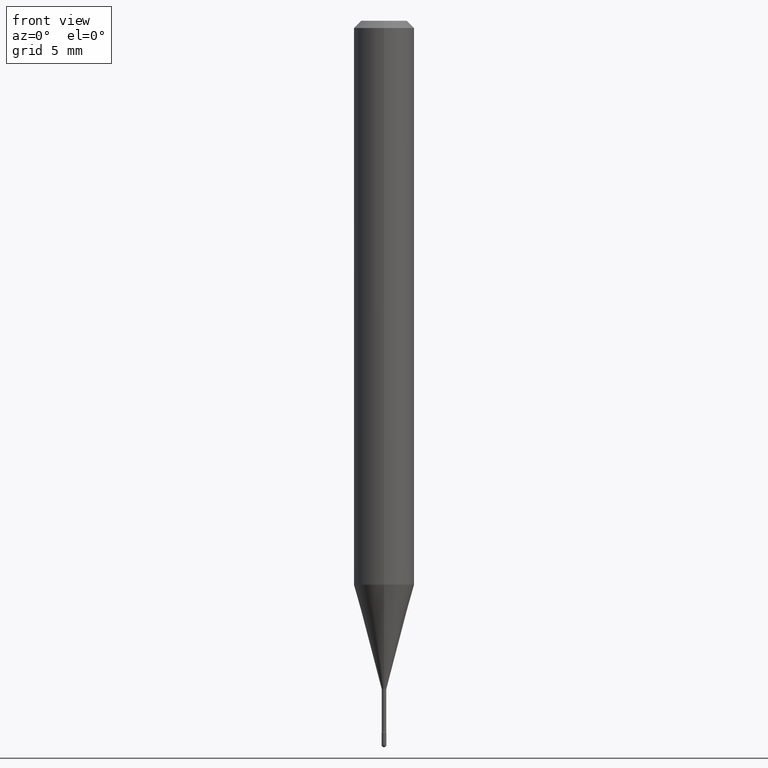
[diagram: clean part render]
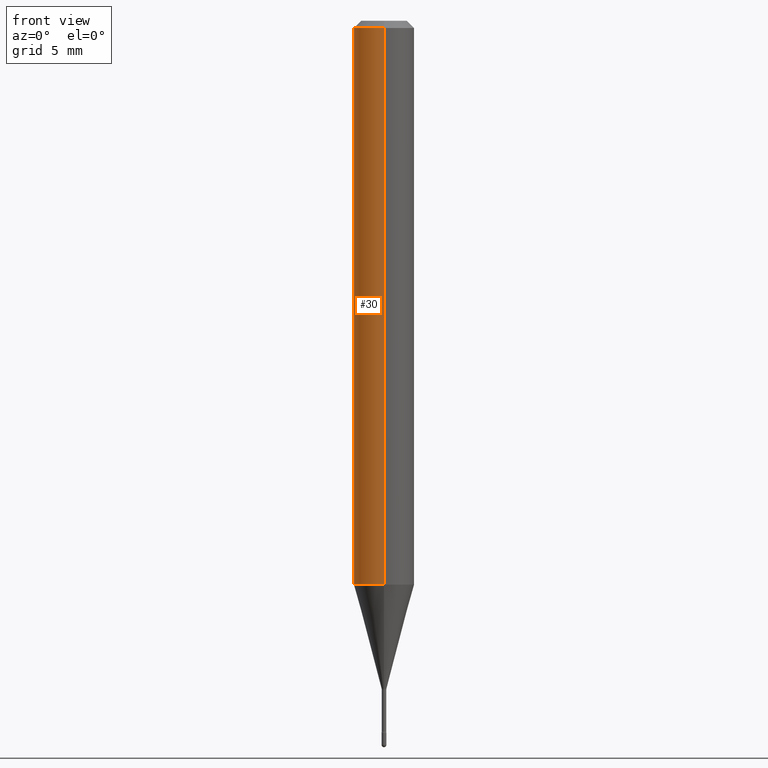
[diagram: same view with one face highlighted and labeled with its STEP entity id]
A machine part, front view. The second image highlights one B-rep face of the part: STEP entity #30.
In plain terms, the highlighted cylindrical surface (edge-blend (fillet) strip) has radius 1.5875 mm, axis along (-0, 0, 1).
Its self-contained STEP definition (entity closure, byte-faithful):
#30 = ADVANCED_FACE ( 'NONE', ( #268 ), #535, .T. ) ;
#41 = VECTOR ( 'NONE', #559, 39.37007874015748143 ) ;
#47 = CARTESIAN_POINT ( 'NONE',  ( -1.169113584055446105E-44, 1.669184350826100908E-30, 4.780733988912460139E-16 ) ) ;
#52 = CIRCLE ( 'NONE', #317, 0.06250000000000000000 ) ;
#55 = DIRECTION ( 'NONE',  ( -2.446607092307177715E-29, 3.489851248329160132E-15, 1.000000000000000000 ) ) ;
#80 = VECTOR ( 'NONE', #392, 39.37007874015748143 ) ;
#137 = VERTEX_POINT ( 'NONE', #505 ) ;
#163 = LINE ( 'NONE', #207, #41 ) ;
#178 = CARTESIAN_POINT ( 'NONE',  ( -4.364351673553631225E-16, -0.06250000000000406619, -1.164287463322519089 ) ) ;
#180 = DIRECTION ( 'NONE',  ( -6.982962677686265922E-15, -1.000000000000000000, 3.489851248329160132E-15 ) ) ;
#207 = CARTESIAN_POINT ( 'NONE',  ( -4.364351673553916201E-16, -0.06250000000000000000, 6.961891019118185468E-16 ) ) ;
#212 = EDGE_LOOP ( 'NONE', ( #349, #566, #378, #401 ) ) ;
#260 = CARTESIAN_POINT ( 'NONE',  ( 4.440892098500913110E-16, 0.06249999999999995837, -0.01500000000000030129 ) ) ;
#267 = VERTEX_POINT ( 'NONE', #417 ) ;
#268 = FACE_OUTER_BOUND ( 'NONE', #212, .T. ) ;
#271 = EDGE_CURVE ( 'NONE', #267, #465, #553, .T. ) ;
#277 = CARTESIAN_POINT ( 'NONE',  ( 4.440892098500625669E-16, 0.06250000000000000000, 2.599576958706735797E-16 ) ) ;
#283 = CARTESIAN_POINT ( 'NONE',  ( 2.848553965249208882E-29, -4.063190057290084953E-15, -1.164287463322519312 ) ) ;
#285 = EDGE_CURVE ( 'NONE', #465, #137, #163, .T. ) ;
#305 = AXIS2_PLACEMENT_3D ( 'NONE', #283, #369, #547 ) ;
#317 = AXIS2_PLACEMENT_3D ( 'NONE', #355, #55, #446 ) ;
#339 = VERTEX_POINT ( 'NONE', #260 ) ;
#349 = ORIENTED_EDGE ( 'NONE', *, *, #491, .F. ) ;
#355 = CARTESIAN_POINT ( 'NONE',  ( 3.669910638460787013E-31, -5.234776872493768941E-17, -0.01500000000000008271 ) ) ;
#369 = DIRECTION ( 'NONE',  ( -2.446607092307177715E-29, 3.489851248329160132E-15, 1.000000000000000000 ) ) ;
#378 = ORIENTED_EDGE ( 'NONE', *, *, #285, .T. ) ;
#392 = DIRECTION ( 'NONE',  ( -2.446607092307177715E-29, 3.489851248329160132E-15, 1.000000000000000000 ) ) ;
#393 = DIRECTION ( 'NONE',  ( -2.446607092307177715E-29, 3.489851248329160132E-15, 1.000000000000000000 ) ) ;
#394 = AXIS2_PLACEMENT_3D ( 'NONE', #47, #393, #180 ) ;
#401 = ORIENTED_EDGE ( 'NONE', *, *, #533, .F. ) ;
#417 = CARTESIAN_POINT ( 'NONE',  ( 4.440892098500909166E-16, 0.06249999999999591993, -1.164287463322519756 ) ) ;
#446 = DIRECTION ( 'NONE',  ( -6.982962677686265922E-15, -1.000000000000000000, 3.483106191921935554E-15 ) ) ;
#465 = VERTEX_POINT ( 'NONE', #178 ) ;
#483 = LINE ( 'NONE', #277, #80 ) ;
#491 = EDGE_CURVE ( 'NONE', #267, #339, #483, .T. ) ;
#505 = CARTESIAN_POINT ( 'NONE',  ( -4.364351673553912750E-16, -0.06250000000000005551, -0.01499999999999986587 ) ) ;
#533 = EDGE_CURVE ( 'NONE', #339, #137, #52, .T. ) ;
#535 = CYLINDRICAL_SURFACE ( 'NONE', #394, 0.06250000000000000000 ) ;
#547 = DIRECTION ( 'NONE',  ( -6.982962677686265922E-15, -1.000000000000000000, 4.370956789862821150E-15 ) ) ;
#553 = CIRCLE ( 'NONE', #305, 0.06250000000000000000 ) ;
#559 = DIRECTION ( 'NONE',  ( -2.446607092307177715E-29, 3.489851248329160132E-15, 1.000000000000000000 ) ) ;
#566 = ORIENTED_EDGE ( 'NONE', *, *, #271, .T. ) ;